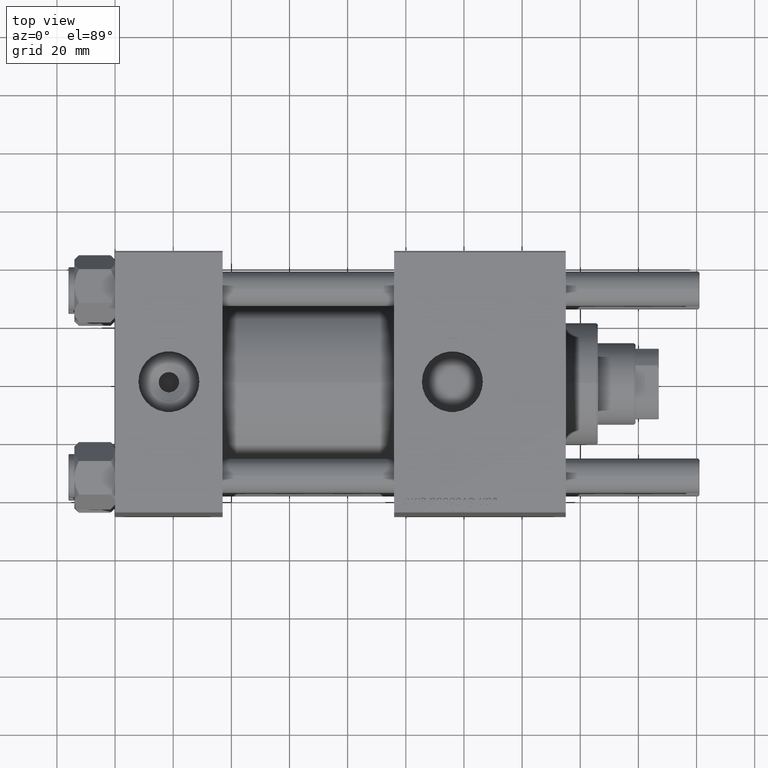
[diagram: clean part render]
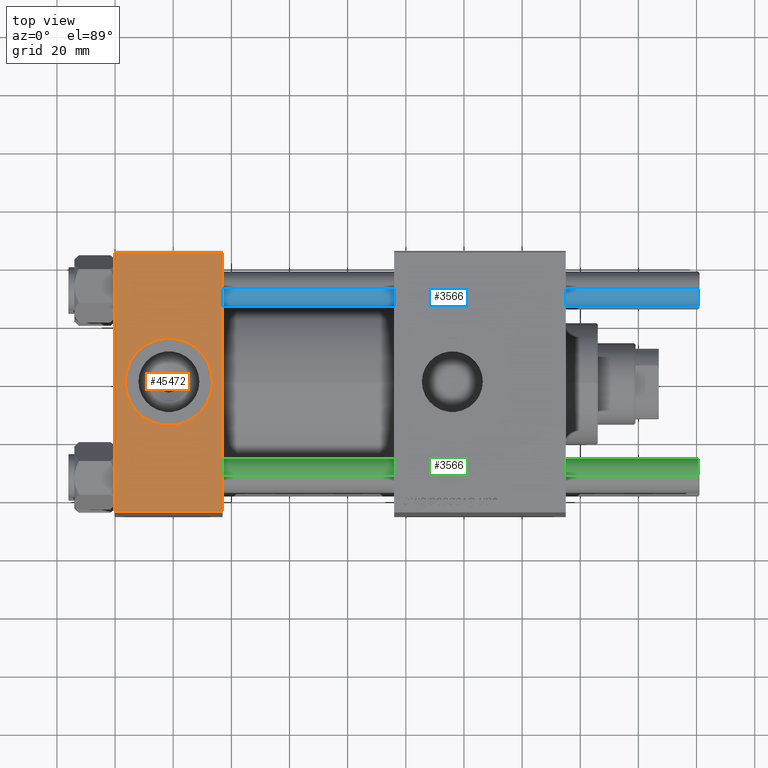
[diagram: same view with three faces highlighted in distinct colors, each labeled with its STEP entity id]
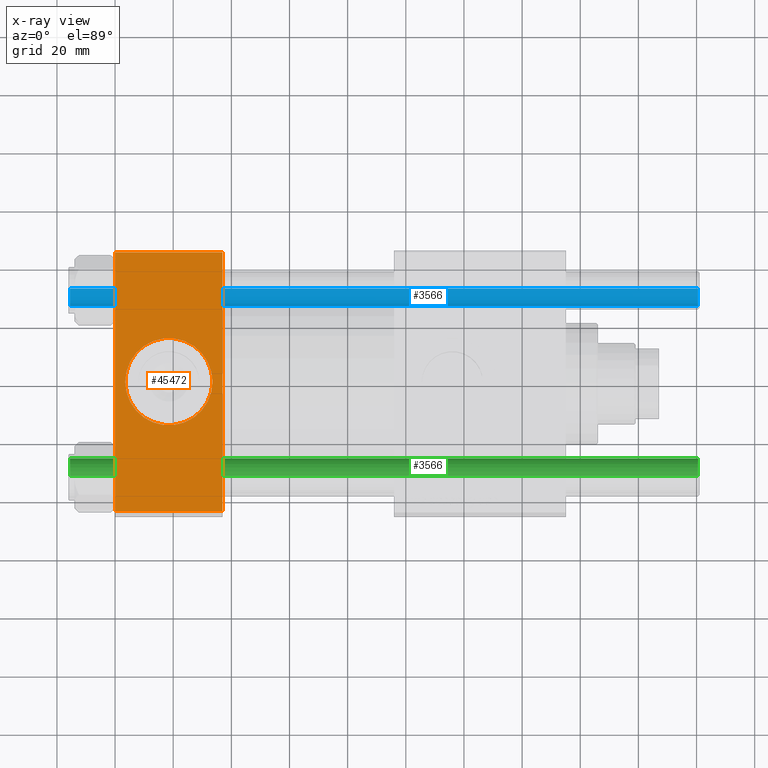
[diagram: x-ray of the same camera — body ghosted, the three highlighted faces saturated]
A machine part, top view with three faces highlighted in distinct colors.
The next image is the same camera in x-ray (body ghosted, the three faces saturated) — at least one of them is partly hidden behind the body in this view.
Their STEP definitions:

[orange] entity #45472 — the highlighted planar face has unit normal (0, 0, -1).
#373 = ORIENTED_EDGE ( 'NONE', *, *, #14564, .T. ) ;
#2271 = CARTESIAN_POINT ( 'NONE',  ( 18.50000000000000000, -8.673617379884038628E-15, 45.00000000000000711 ) ) ;
#2917 = ORIENTED_EDGE ( 'NONE', *, *, #3483, .F. ) ;
#3483 = EDGE_CURVE ( 'NONE', #5882, #7598, #45086, .T. ) ;
#4269 = FACE_OUTER_BOUND ( 'NONE', #24915, .T. ) ;
#5882 = VERTEX_POINT ( 'NONE', #28265 ) ;
#6676 = CARTESIAN_POINT ( 'NONE',  ( 18.50000000000000000, -8.673617379884038628E-15, 45.00000000000000711 ) ) ;
#7058 = LINE ( 'NONE', #28023, #35062 ) ;
#7284 = LINE ( 'NONE', #24775, #33600 ) ;
#7598 = VERTEX_POINT ( 'NONE', #29054 ) ;
#8553 = CIRCLE ( 'NONE', #27817, 15.00000000000000355 ) ;
#8576 = FACE_BOUND ( 'NONE', #16688, .T. ) ;
#8628 = VECTOR ( 'NONE', #8934, 1000.000000000000000 ) ;
#8934 = DIRECTION ( 'NONE',  ( -1.000000000000000000, 0.000000000000000000, 0.000000000000000000 ) ) ;
#10150 = DIRECTION ( 'NONE',  ( 1.000000000000000000, 0.000000000000000000, 0.000000000000000000 ) ) ;
#10385 = DIRECTION ( 'NONE',  ( 0.000000000000000000, -1.000000000000000000, -1.541976423090495387E-16 ) ) ;
#10726 = EDGE_CURVE ( 'NONE', #37216, #40134, #24315, .T. ) ;
#13812 = CARTESIAN_POINT ( 'NONE',  ( 3.499999999999997780, -6.836647181163008250E-15, 45.00000000000000711 ) ) ;
#14564 = EDGE_CURVE ( 'NONE', #56542, #7598, #7284, .T. ) ;
#16688 = EDGE_LOOP ( 'NONE', ( #40185, #31759 ) ) ;
#17194 = DIRECTION ( 'NONE',  ( 0.000000000000000000, 1.000000000000000000, 1.541976423090495633E-16 ) ) ;
#22353 = AXIS2_PLACEMENT_3D ( 'NONE', #35237, #26068, #17194 ) ;
#23370 = AXIS2_PLACEMENT_3D ( 'NONE', #2271, #28951, #54772 ) ;
#23712 = DIRECTION ( 'NONE',  ( 0.000000000000000000, -1.000000000000000000, -1.541976423090495387E-16 ) ) ;
#24315 = CIRCLE ( 'NONE', #23370, 15.00000000000000355 ) ;
#24775 = CARTESIAN_POINT ( 'NONE',  ( 37.00000000000000000, -44.49999999999998579, 45.00000000000000000 ) ) ;
#24915 = EDGE_LOOP ( 'NONE', ( #36500, #373, #2917, #37908 ) ) ;
#25823 = EDGE_CURVE ( 'NONE', #55417, #56542, #7058, .T. ) ;
#26068 = DIRECTION ( 'NONE',  ( 0.000000000000000000, 1.541976423090495633E-16, -1.000000000000000000 ) ) ;
#27817 = AXIS2_PLACEMENT_3D ( 'NONE', #6676, #44849, #10150 ) ;
#28023 = CARTESIAN_POINT ( 'NONE',  ( 0.000000000000000000, 44.99999999999998579, 45.00000000000001421 ) ) ;
#28265 = CARTESIAN_POINT ( 'NONE',  ( 37.00000000000000000, 44.49999999999998579, 45.00000000000001421 ) ) ;
#28951 = DIRECTION ( 'NONE',  ( 0.000000000000000000, 0.000000000000000000, 1.000000000000000000 ) ) ;
#29054 = CARTESIAN_POINT ( 'NONE',  ( 37.00000000000000000, -44.49999999999995737, 45.00000000000000000 ) ) ;
#31759 = ORIENTED_EDGE ( 'NONE', *, *, #38860, .F. ) ;
#32181 = CARTESIAN_POINT ( 'NONE',  ( 37.00000000000000000, 44.99999999999998579, 45.00000000000001421 ) ) ;
#33600 = VECTOR ( 'NONE', #46564, 1000.000000000000000 ) ;
#35062 = VECTOR ( 'NONE', #23712, 1000.000000000000000 ) ;
#35237 = CARTESIAN_POINT ( 'NONE',  ( 37.00000000000000000, 44.99999999999998579, 45.00000000000001421 ) ) ;
#36500 = ORIENTED_EDGE ( 'NONE', *, *, #25823, .T. ) ;
#36585 = CARTESIAN_POINT ( 'NONE',  ( 0.000000000000000000, 44.49999999999998579, 45.00000000000001421 ) ) ;
#37216 = VERTEX_POINT ( 'NONE', #48268 ) ;
#37908 = ORIENTED_EDGE ( 'NONE', *, *, #45069, .T. ) ;
#38860 = EDGE_CURVE ( 'NONE', #40134, #37216, #8553, .T. ) ;
#40134 = VERTEX_POINT ( 'NONE', #13812 ) ;
#40185 = ORIENTED_EDGE ( 'NONE', *, *, #10726, .F. ) ;
#44264 = CARTESIAN_POINT ( 'NONE',  ( 0.000000000000000000, -44.49999999999995737, 45.00000000000000000 ) ) ;
#44849 = DIRECTION ( 'NONE',  ( 0.000000000000000000, 0.000000000000000000, 1.000000000000000000 ) ) ;
#45069 = EDGE_CURVE ( 'NONE', #5882, #55417, #51124, .T. ) ;
#45086 = LINE ( 'NONE', #32181, #52596 ) ;
#45472 = ADVANCED_FACE ( 'NONE', ( #8576, #4269 ), #48434, .F. ) ;
#46564 = DIRECTION ( 'NONE',  ( 1.000000000000000000, 0.000000000000000000, 0.000000000000000000 ) ) ;
#46804 = CARTESIAN_POINT ( 'NONE',  ( 0.000000000000000000, 44.49999999999998579, 45.00000000000001421 ) ) ;
#48268 = CARTESIAN_POINT ( 'NONE',  ( 33.50000000000000000, -8.673617379884038628E-15, 45.00000000000000711 ) ) ;
#48434 = PLANE ( 'NONE',  #22353 ) ;
#51124 = LINE ( 'NONE', #46804, #8628 ) ;
#52596 = VECTOR ( 'NONE', #10385, 1000.000000000000000 ) ;
#54772 = DIRECTION ( 'NONE',  ( 1.000000000000000000, 0.000000000000000000, 0.000000000000000000 ) ) ;
#55417 = VERTEX_POINT ( 'NONE', #36585 ) ;
#56542 = VERTEX_POINT ( 'NONE', #44264 ) ;

[blue] entity #3566 — the highlighted cylindrical surface (edge-blend (fillet) strip) has radius 6 mm, axis along (1, -0, -0).
#3566 = ADVANCED_FACE ( 'NONE', ( #28168 ), #19545, .T. ) ;
#6364 = CARTESIAN_POINT ( 'NONE',  ( 0.000000000000000000, 0.000000000000000000, 217.0000000000000000 ) ) ;
#7868 = LINE ( 'NONE', #29949, #14703 ) ;
#9186 = EDGE_LOOP ( 'NONE', ( #12604, #23642, #19433, #21027 ) ) ;
#10497 = EDGE_CURVE ( 'NONE', #24063, #35571, #44522, .T. ) ;
#12604 = ORIENTED_EDGE ( 'NONE', *, *, #10497, .F. ) ;
#14574 = VERTEX_POINT ( 'NONE', #45994 ) ;
#14703 = VECTOR ( 'NONE', #47428, 1000.000000000000000 ) ;
#15889 = EDGE_CURVE ( 'NONE', #24063, #26815, #16265, .T. ) ;
#16265 = CIRCLE ( 'NONE', #26324, 6.000000000000000888 ) ;
#16472 = EDGE_CURVE ( 'NONE', #14574, #35571, #56529, .T. ) ;
#18424 = DIRECTION ( 'NONE',  ( -1.000000000000000000, 0.000000000000000000, 0.000000000000000000 ) ) ;
#18754 = AXIS2_PLACEMENT_3D ( 'NONE', #6364, #45649, #18424 ) ;
#19310 = CARTESIAN_POINT ( 'NONE',  ( 6.000000000000000888, 7.347880794884120722E-16, 0.4999999999999449329 ) ) ;
#19433 = ORIENTED_EDGE ( 'NONE', *, *, #28385, .T. ) ;
#19545 = CYLINDRICAL_SURFACE ( 'NONE', #18754, 6.000000000000000888 ) ;
#20057 = DIRECTION ( 'NONE',  ( -0.000000000000000000, -0.000000000000000000, 1.000000000000000000 ) ) ;
#21027 = ORIENTED_EDGE ( 'NONE', *, *, #16472, .T. ) ;
#22435 = CARTESIAN_POINT ( 'NONE',  ( 6.000000000000000888, 7.347880794884120722E-16, 217.0000000000000000 ) ) ;
#23642 = ORIENTED_EDGE ( 'NONE', *, *, #15889, .T. ) ;
#24063 = VERTEX_POINT ( 'NONE', #29472 ) ;
#24924 = CARTESIAN_POINT ( 'NONE',  ( 0.000000000000000000, 0.000000000000000000, 0.4999999999999449329 ) ) ;
#26324 = AXIS2_PLACEMENT_3D ( 'NONE', #29523, #56672, #34859 ) ;
#26815 = VERTEX_POINT ( 'NONE', #42905 ) ;
#27235 = AXIS2_PLACEMENT_3D ( 'NONE', #24924, #20057, #46140 ) ;
#28168 = FACE_OUTER_BOUND ( 'NONE', #9186, .T. ) ;
#28385 = EDGE_CURVE ( 'NONE', #26815, #14574, #7868, .T. ) ;
#29472 = CARTESIAN_POINT ( 'NONE',  ( 6.000000000000000888, 7.347880794884120722E-16, 216.4999999999999716 ) ) ;
#29523 = CARTESIAN_POINT ( 'NONE',  ( 0.000000000000000000, 0.000000000000000000, 216.4999999999999716 ) ) ;
#29949 = CARTESIAN_POINT ( 'NONE',  ( -6.000000000000000888, 0.000000000000000000, 217.0000000000000000 ) ) ;
#34859 = DIRECTION ( 'NONE',  ( 1.000000000000000000, 0.000000000000000000, 0.000000000000000000 ) ) ;
#35571 = VERTEX_POINT ( 'NONE', #19310 ) ;
#39941 = DIRECTION ( 'NONE',  ( -0.000000000000000000, -0.000000000000000000, -1.000000000000000000 ) ) ;
#42905 = CARTESIAN_POINT ( 'NONE',  ( -6.000000000000000888, 0.000000000000000000, 216.4999999999999716 ) ) ;
#44522 = LINE ( 'NONE', #22435, #52682 ) ;
#45649 = DIRECTION ( 'NONE',  ( -0.000000000000000000, -0.000000000000000000, -1.000000000000000000 ) ) ;
#45994 = CARTESIAN_POINT ( 'NONE',  ( -6.000000000000000888, 0.000000000000000000, 0.4999999999999449329 ) ) ;
#46140 = DIRECTION ( 'NONE',  ( 1.000000000000000000, 0.000000000000000000, 0.000000000000000000 ) ) ;
#47428 = DIRECTION ( 'NONE',  ( -0.000000000000000000, -0.000000000000000000, -1.000000000000000000 ) ) ;
#52682 = VECTOR ( 'NONE', #39941, 1000.000000000000000 ) ;
#56529 = CIRCLE ( 'NONE', #27235, 6.000000000000000888 ) ;
#56672 = DIRECTION ( 'NONE',  ( 0.000000000000000000, 0.000000000000000000, -1.000000000000000000 ) ) ;

[green] entity #3566 — the highlighted cylindrical surface (edge-blend (fillet) strip) has radius 6 mm, axis along (-1, 0, -0).
#3566 = ADVANCED_FACE ( 'NONE', ( #28168 ), #19545, .T. ) ;
#6364 = CARTESIAN_POINT ( 'NONE',  ( 0.000000000000000000, 0.000000000000000000, 217.0000000000000000 ) ) ;
#7868 = LINE ( 'NONE', #29949, #14703 ) ;
#9186 = EDGE_LOOP ( 'NONE', ( #12604, #23642, #19433, #21027 ) ) ;
#10497 = EDGE_CURVE ( 'NONE', #24063, #35571, #44522, .T. ) ;
#12604 = ORIENTED_EDGE ( 'NONE', *, *, #10497, .F. ) ;
#14574 = VERTEX_POINT ( 'NONE', #45994 ) ;
#14703 = VECTOR ( 'NONE', #47428, 1000.000000000000000 ) ;
#15889 = EDGE_CURVE ( 'NONE', #24063, #26815, #16265, .T. ) ;
#16265 = CIRCLE ( 'NONE', #26324, 6.000000000000000888 ) ;
#16472 = EDGE_CURVE ( 'NONE', #14574, #35571, #56529, .T. ) ;
#18424 = DIRECTION ( 'NONE',  ( -1.000000000000000000, 0.000000000000000000, 0.000000000000000000 ) ) ;
#18754 = AXIS2_PLACEMENT_3D ( 'NONE', #6364, #45649, #18424 ) ;
#19310 = CARTESIAN_POINT ( 'NONE',  ( 6.000000000000000888, 7.347880794884120722E-16, 0.4999999999999449329 ) ) ;
#19433 = ORIENTED_EDGE ( 'NONE', *, *, #28385, .T. ) ;
#19545 = CYLINDRICAL_SURFACE ( 'NONE', #18754, 6.000000000000000888 ) ;
#20057 = DIRECTION ( 'NONE',  ( -0.000000000000000000, -0.000000000000000000, 1.000000000000000000 ) ) ;
#21027 = ORIENTED_EDGE ( 'NONE', *, *, #16472, .T. ) ;
#22435 = CARTESIAN_POINT ( 'NONE',  ( 6.000000000000000888, 7.347880794884120722E-16, 217.0000000000000000 ) ) ;
#23642 = ORIENTED_EDGE ( 'NONE', *, *, #15889, .T. ) ;
#24063 = VERTEX_POINT ( 'NONE', #29472 ) ;
#24924 = CARTESIAN_POINT ( 'NONE',  ( 0.000000000000000000, 0.000000000000000000, 0.4999999999999449329 ) ) ;
#26324 = AXIS2_PLACEMENT_3D ( 'NONE', #29523, #56672, #34859 ) ;
#26815 = VERTEX_POINT ( 'NONE', #42905 ) ;
#27235 = AXIS2_PLACEMENT_3D ( 'NONE', #24924, #20057, #46140 ) ;
#28168 = FACE_OUTER_BOUND ( 'NONE', #9186, .T. ) ;
#28385 = EDGE_CURVE ( 'NONE', #26815, #14574, #7868, .T. ) ;
#29472 = CARTESIAN_POINT ( 'NONE',  ( 6.000000000000000888, 7.347880794884120722E-16, 216.4999999999999716 ) ) ;
#29523 = CARTESIAN_POINT ( 'NONE',  ( 0.000000000000000000, 0.000000000000000000, 216.4999999999999716 ) ) ;
#29949 = CARTESIAN_POINT ( 'NONE',  ( -6.000000000000000888, 0.000000000000000000, 217.0000000000000000 ) ) ;
#34859 = DIRECTION ( 'NONE',  ( 1.000000000000000000, 0.000000000000000000, 0.000000000000000000 ) ) ;
#35571 = VERTEX_POINT ( 'NONE', #19310 ) ;
#39941 = DIRECTION ( 'NONE',  ( -0.000000000000000000, -0.000000000000000000, -1.000000000000000000 ) ) ;
#42905 = CARTESIAN_POINT ( 'NONE',  ( -6.000000000000000888, 0.000000000000000000, 216.4999999999999716 ) ) ;
#44522 = LINE ( 'NONE', #22435, #52682 ) ;
#45649 = DIRECTION ( 'NONE',  ( -0.000000000000000000, -0.000000000000000000, -1.000000000000000000 ) ) ;
#45994 = CARTESIAN_POINT ( 'NONE',  ( -6.000000000000000888, 0.000000000000000000, 0.4999999999999449329 ) ) ;
#46140 = DIRECTION ( 'NONE',  ( 1.000000000000000000, 0.000000000000000000, 0.000000000000000000 ) ) ;
#47428 = DIRECTION ( 'NONE',  ( -0.000000000000000000, -0.000000000000000000, -1.000000000000000000 ) ) ;
#52682 = VECTOR ( 'NONE', #39941, 1000.000000000000000 ) ;
#56529 = CIRCLE ( 'NONE', #27235, 6.000000000000000888 ) ;
#56672 = DIRECTION ( 'NONE',  ( 0.000000000000000000, 0.000000000000000000, -1.000000000000000000 ) ) ;